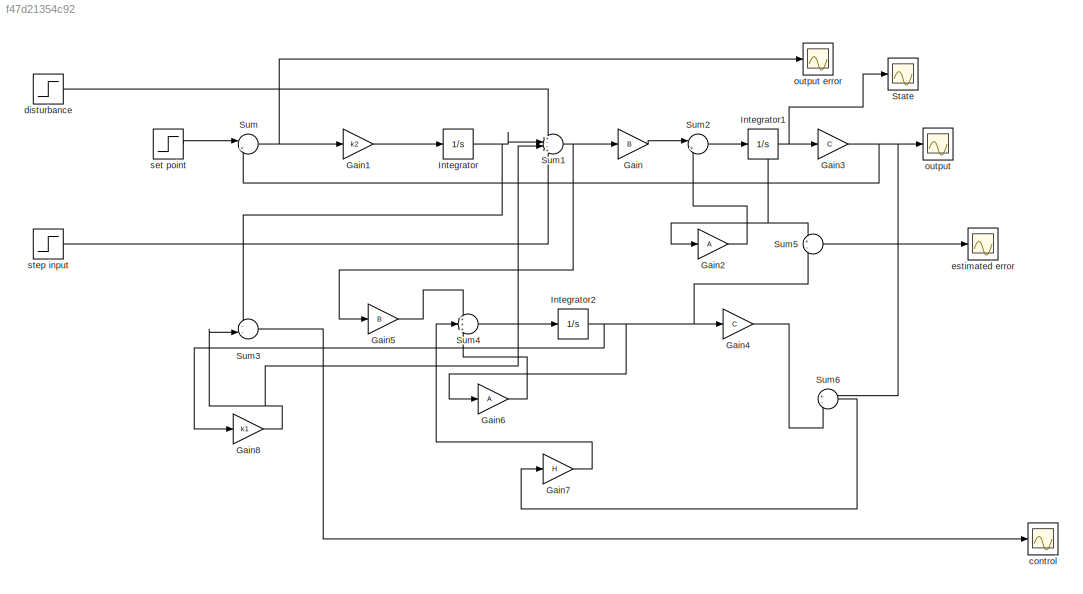
MODEL slx_f47d21354c92
KIND model
CONFIG AbsTol = auto
CONFIG EnableMultiTasking = off
CONFIG FixedStep = auto
CONFIG MaxStep = auto
CONFIG MinStep = auto
CONFIG RelTol = 1e-3
CONFIG SampleTimeConstraint = Unconstrained
CONFIG SolverName = VariableStepAuto
CONFIG StartTime = 0.0
CONFIG StopTime = 10.0
BLOCK [Gain] Gain
  Gain = B
  Multiplication = Matrix(K*u)
BLOCK [Gain] Gain1
  Gain = k2
  Multiplication = Matrix(K*u)
BLOCK [Gain] Gain2
  Gain = A
  Multiplication = Matrix(K*u)
BLOCK [Gain] Gain3
  Gain = C
  Multiplication = Matrix(K*u)
BLOCK [Gain] Gain4
  Gain = C
  Multiplication = Matrix(K*u)
BLOCK [Gain] Gain5
  Gain = B
  Multiplication = Matrix(K*u)
BLOCK [Gain] Gain6
  Gain = A
  Multiplication = Matrix(K*u)
BLOCK [Gain] Gain7
  Gain = H
  Multiplication = Matrix(K*u)
BLOCK [Gain] Gain8
  Gain = k1
  Multiplication = Matrix(K*u)
BLOCK [Integrator] Integrator
BLOCK [Integrator] Integrator1
BLOCK [Integrator] Integrator2
BLOCK [Scope] State
  Floating = off
  NumInputPorts = 1
  ScopeSpecificationString = Simulink.scopes.TimeScopeBlockCfg('CurrentConfiguration', extmgr.ConfigurationSet(extmgr.Configuration('Core','General UI',true),extmgr.Configuration('Core','Source UI',true),extmgr.Configuration('Sources','WiredSimulink',true),extmgr.Configuration('Visuals','Time Domain',true,'SerializedDisplays',{struct('MinYLimReal','-0.58919','MaxYLimReal','0.31339','YLabelReal','','MinYLimMag','0.00000','MaxY...<+1381ch>
BLOCK [Sum] Sum
  Inputs = |+-
BLOCK [Sum] Sum1
  Inputs = +--+
BLOCK [Sum] Sum2
  Inputs = |++
BLOCK [Sum] Sum3
  Inputs = --|
BLOCK [Sum] Sum4
  Inputs = +++
BLOCK [Sum] Sum5
  Inputs = +-
BLOCK [Sum] Sum6
  Inputs = +-
BLOCK [Scope] control
  Floating = off
  NumInputPorts = 1
  ScopeSpecificationString = Simulink.scopes.TimeScopeBlockCfg('CurrentConfiguration', extmgr.ConfigurationSet(extmgr.Configuration('Core','General UI',true),extmgr.Configuration('Core','Source UI',true),extmgr.Configuration('Sources','WiredSimulink',true,'DataLoggingVariableName','ScopeData4'),extmgr.Configuration('Visuals','Time Domain',true,'SerializedDisplays',{struct('MinYLimReal','-1.13996','MaxYLimReal','0.12666','YLab...<+1401ch>
BLOCK [Step] disturbance
  After = [0 1]'
  Before = [0 0]'
  SampleTime = 0
  Time = 0
BLOCK [Scope] estimated error
  Floating = off
  NumInputPorts = 1
  ScopeSpecificationString = Simulink.scopes.TimeScopeBlockCfg('CurrentConfiguration', extmgr.ConfigurationSet(extmgr.Configuration('Core','General UI',true),extmgr.Configuration('Core','Source UI',true),extmgr.Configuration('Sources','WiredSimulink',true,'DataLoggingVariableName','ScopeData3'),extmgr.Configuration('Visuals','Time Domain',true,'SerializedDisplays',{struct('MinYLimReal','-1.00000','MaxYLimReal','1.00000','YLab...<+1419ch>
BLOCK [Scope] output
  Floating = off
  NumInputPorts = 1
  ScopeSpecificationString = Simulink.scopes.TimeScopeBlockCfg('CurrentConfiguration', extmgr.ConfigurationSet(extmgr.Configuration('Core','General UI',true),extmgr.Configuration('Core','Source UI',true),extmgr.Configuration('Sources','WiredSimulink',true,'DataLoggingVariableName','ScopeData2'),extmgr.Configuration('Visuals','Time Domain',true,'SerializedDisplays',{struct('MinYLimReal','-0.12483','MaxYLimReal','1.12332','YLab...<+1403ch>
BLOCK [Scope] output error
  Floating = off
  NumInputPorts = 1
  ScopeSpecificationString = Simulink.scopes.TimeScopeBlockCfg('CurrentConfiguration', extmgr.ConfigurationSet(extmgr.Configuration('Core','General UI',true),extmgr.Configuration('Core','Source UI',true),extmgr.Configuration('Sources','WiredSimulink',true,'DataLoggingVariableName','ScopeData1'),extmgr.Configuration('Visuals','Time Domain',true,'SerializedDisplays',{struct('MinYLimReal','-0.18716','MaxYLimReal','1.13191','YLab...<+1398ch>
BLOCK [Step] set point
  After = [0 1]'
  Before = [0 0]'
  SampleTime = 0
  Time = 0
  VectorParams1D = off
BLOCK [Step] step input
  After = [0 1]'
  Before = [0 0]'
  SampleTime = 0
  Time = 0
  VectorParams1D = off
LINE Gain1:1 -> Integrator:1
LINE Gain2:1 -> Sum2:2
NET Gain3:1 -> Sum6:1, Sum:2, output:1
LINE Gain4:1 -> Sum6:2
LINE Gain5:1 -> Sum4:1
LINE Gain6:1 -> Sum4:3
LINE Gain7:1 -> Sum4:2
NET Gain8:1 -> Sum1:3, Sum3:2
LINE Gain:1 -> Sum2:1
NET Integrator1:1 -> Gain2:1, Gain3:1, State:1, Sum5:1
NET Integrator2:1 -> Gain4:1, Gain6:1, Gain8:1, Sum5:2
NET Integrator:1 -> Sum1:2, Sum3:1
NET Sum1:1 -> Gain5:1, Gain:1
LINE Sum2:1 -> Integrator1:1
LINE Sum3:1 -> control:1
LINE Sum4:1 -> Integrator2:1
LINE Sum5:1 -> estimated error:1
LINE Sum6:1 -> Gain7:1
NET Sum:1 -> Gain1:1, output error:1
LINE disturbance:1 -> Sum1:1
LINE set point:1 -> Sum:1
LINE step input:1 -> Sum1:4
note: NET lines group one-source signal fan-out (src -> all destinations, sorted); 1:1 wires keep LINE
